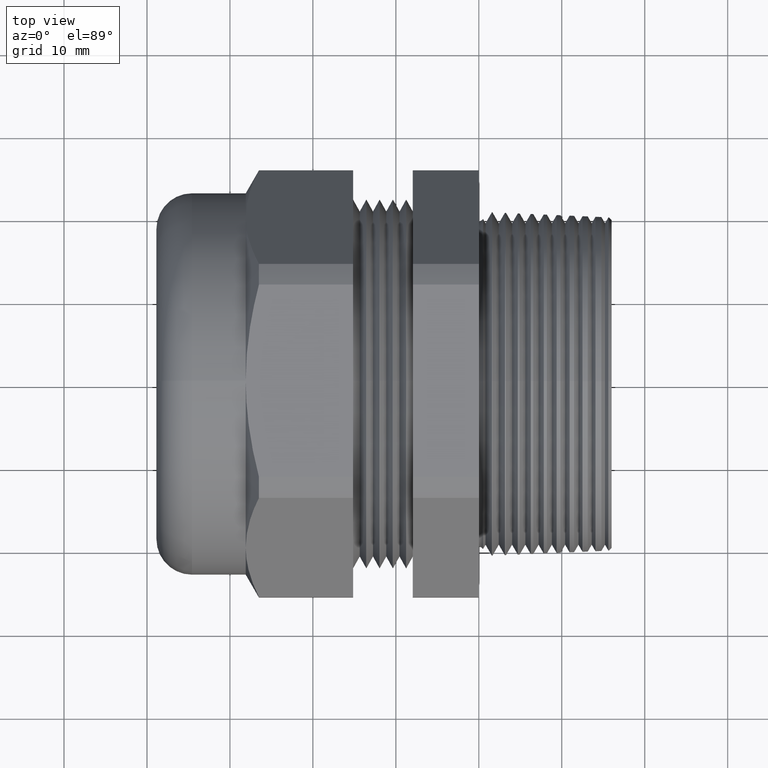
[diagram: clean part render]
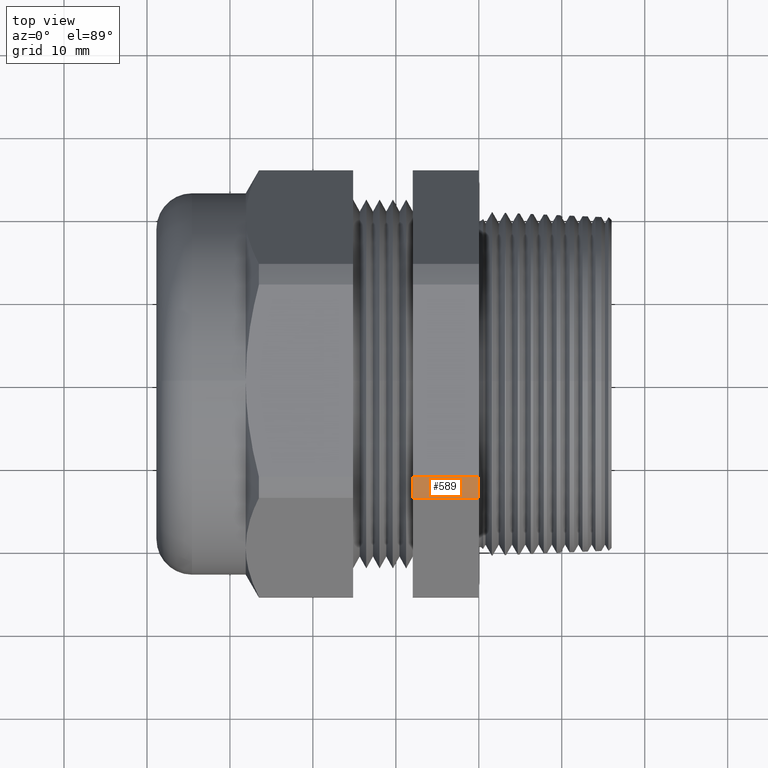
[diagram: same view with one face highlighted and labeled with its STEP entity id]
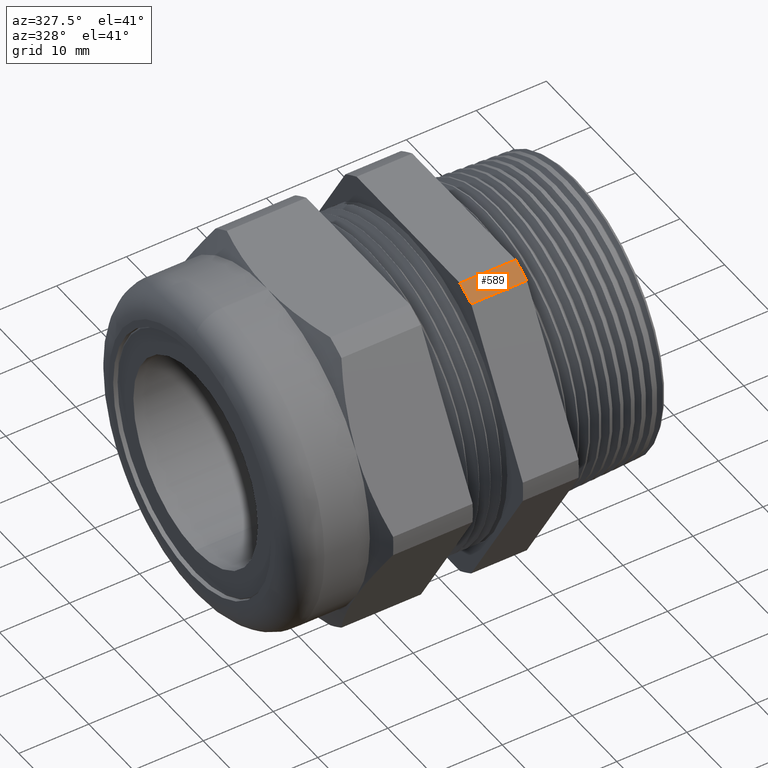
[diagram: same view with one face highlighted and labeled with its STEP entity id]
A machine part, top view. The second image highlights one B-rep face of the part: STEP entity #589.
A second angle (auxiliary view) of the same face is appended — the face is thin or edge-on in the first view.
In plain terms, the highlighted cylindrical surface (partial cylindrical patch) has radius 25.7454 mm, axis along (-1, 0, 0).
Its self-contained STEP definition (entity closure, byte-faithful):
#97 = EDGE_CURVE ( 'NONE', #98, #222, #1663, .T. ) ;
#98 = VERTEX_POINT ( 'NONE', #1621 ) ;
#222 = VERTEX_POINT ( 'NONE', #1807 ) ;
#302 = EDGE_CURVE ( 'NONE', #511, #303, #1937, .T. ) ;
#303 = VERTEX_POINT ( 'NONE', #1932 ) ;
#380 = ORIENTED_EDGE ( 'NONE', *, *, #381, .T. ) ;
#381 = EDGE_CURVE ( 'NONE', #511, #98, #2126, .T. ) ;
#382 = ORIENTED_EDGE ( 'NONE', *, *, #97, .T. ) ;
#511 = VERTEX_POINT ( 'NONE', #2329 ) ;
#577 = ORIENTED_EDGE ( 'NONE', *, *, #302, .F. ) ;
#586 = EDGE_LOOP ( 'NONE', ( #599, #577, #380, #382 ) ) ;
#589 = ADVANCED_FACE ( 'NONE', ( #2623 ), #2536, .T. ) ;
#599 = ORIENTED_EDGE ( 'NONE', *, *, #667, .F. ) ;
#667 = EDGE_CURVE ( 'NONE', #303, #222, #2543, .T. ) ;
#1621 = CARTESIAN_POINT ( 'NONE',  ( 0.0000000000000000000, -0.5555206745710920000, 0.8478099669879323200 ) ) ;
#1622 = DIRECTION ( 'NONE',  ( 0.0000000000000000000, 0.0000000000000000000, 1.000000000000000000 ) ) ;
#1623 = DIRECTION ( 'NONE',  ( -1.000000000000000000, 0.0000000000000000000, 0.0000000000000000000 ) ) ;
#1624 = CARTESIAN_POINT ( 'NONE',  ( 0.0000000000000000000, 0.0000000000000000000, 0.0000000000000000000 ) ) ;
#1625 = AXIS2_PLACEMENT_3D ( 'NONE', #1624, #1623, #1622 ) ;
#1663 = CIRCLE ( 'NONE', #1625, 1.013600000000000100 ) ;
#1807 = CARTESIAN_POINT ( 'NONE',  ( 0.0000000000000000000, -0.4564646317076495000, 0.9050000000000000300 ) ) ;
#1932 = CARTESIAN_POINT ( 'NONE',  ( -0.3134328358208957600, -0.4564646317076495000, 0.9050000000000000300 ) ) ;
#1933 = DIRECTION ( 'NONE',  ( 0.0000000000000000000, 0.0000000000000000000, 1.000000000000000000 ) ) ;
#1934 = DIRECTION ( 'NONE',  ( -1.000000000000000000, 0.0000000000000000000, 0.0000000000000000000 ) ) ;
#1935 = CARTESIAN_POINT ( 'NONE',  ( -0.3134328358208955400, 0.0000000000000000000, 0.0000000000000000000 ) ) ;
#1936 = AXIS2_PLACEMENT_3D ( 'NONE', #1935, #1934, #1933 ) ;
#1937 = CIRCLE ( 'NONE', #1936, 1.013600000000000100 ) ;
#2123 = DIRECTION ( 'NONE',  ( 1.000000000000000000, 0.0000000000000000000, 0.0000000000000000000 ) ) ;
#2124 = VECTOR ( 'NONE', #2123, 39.37007874015748100 ) ;
#2125 = CARTESIAN_POINT ( 'NONE',  ( -4.001812670979164800, -0.5555206745710920000, 0.8478099669879323200 ) ) ;
#2126 = LINE ( 'NONE', #2125, #2124 ) ;
#2329 = CARTESIAN_POINT ( 'NONE',  ( -0.3134328358208957600, -0.5555206745710920000, 0.8478099669879323200 ) ) ;
#2536 = CYLINDRICAL_SURFACE ( 'NONE', #2538, 1.013600000000000100 ) ;
#2538 = AXIS2_PLACEMENT_3D ( 'NONE', #2672, #2671, #2670 ) ;
#2540 = DIRECTION ( 'NONE',  ( 1.000000000000000000, 0.0000000000000000000, 0.0000000000000000000 ) ) ;
#2541 = VECTOR ( 'NONE', #2540, 39.37007874015748100 ) ;
#2542 = CARTESIAN_POINT ( 'NONE',  ( -4.001812670979164800, -0.4564646317076495000, 0.9050000000000000300 ) ) ;
#2543 = LINE ( 'NONE', #2542, #2541 ) ;
#2623 = FACE_OUTER_BOUND ( 'NONE', #586, .T. ) ;
#2670 = DIRECTION ( 'NONE',  ( 0.0000000000000000000, 0.0000000000000000000, 1.000000000000000000 ) ) ;
#2671 = DIRECTION ( 'NONE',  ( -1.000000000000000000, 0.0000000000000000000, 0.0000000000000000000 ) ) ;
#2672 = CARTESIAN_POINT ( 'NONE',  ( -0.7238591030180623300, 0.0000000000000000000, 0.0000000000000000000 ) ) ;